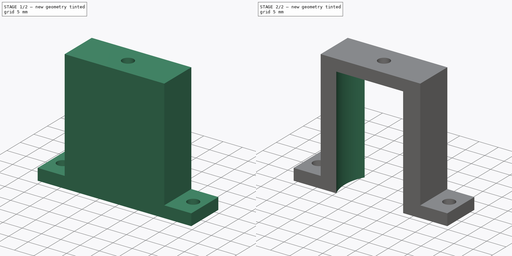
[diagram: build sequence overview — one tinted view per stage of 2, left to right]
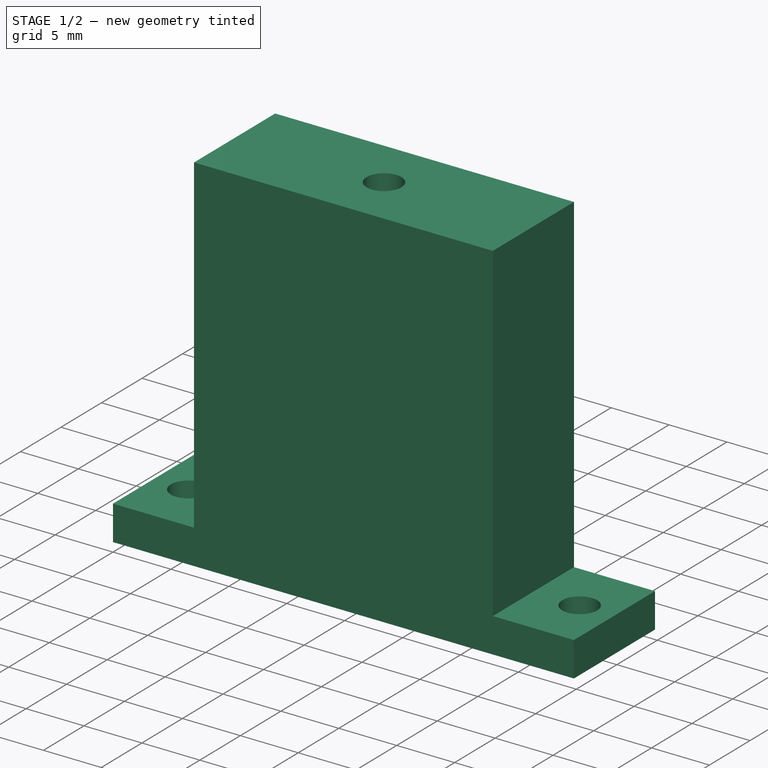
[diagram: stage 1 of 2 — iso view after this stage's code; geometry added in this stage tinted green]
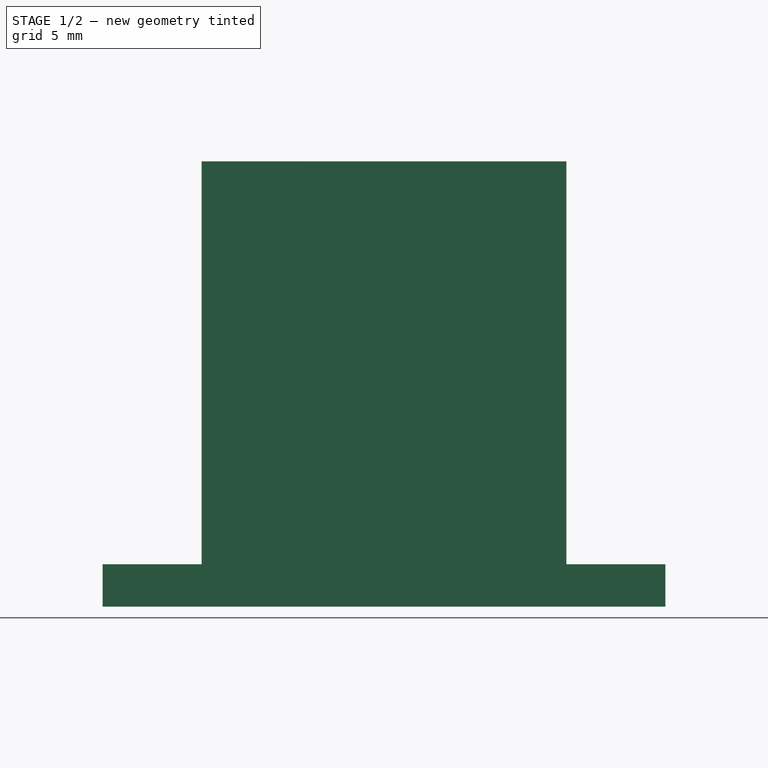
[diagram: stage 1 of 2 — front view after this stage's code; geometry added in this stage tinted green]
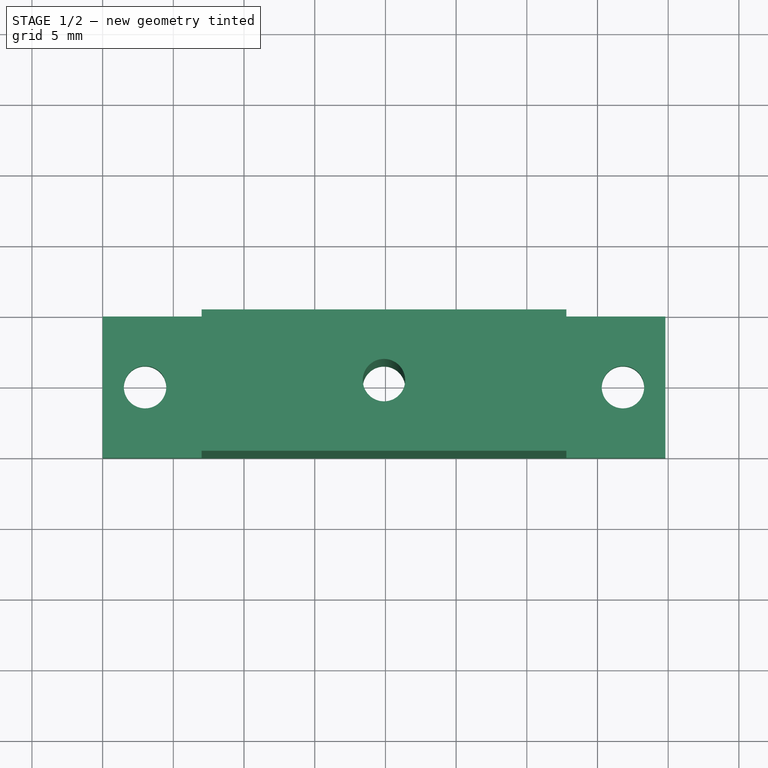
[diagram: stage 1 of 2 — top view after this stage's code; geometry added in this stage tinted green]
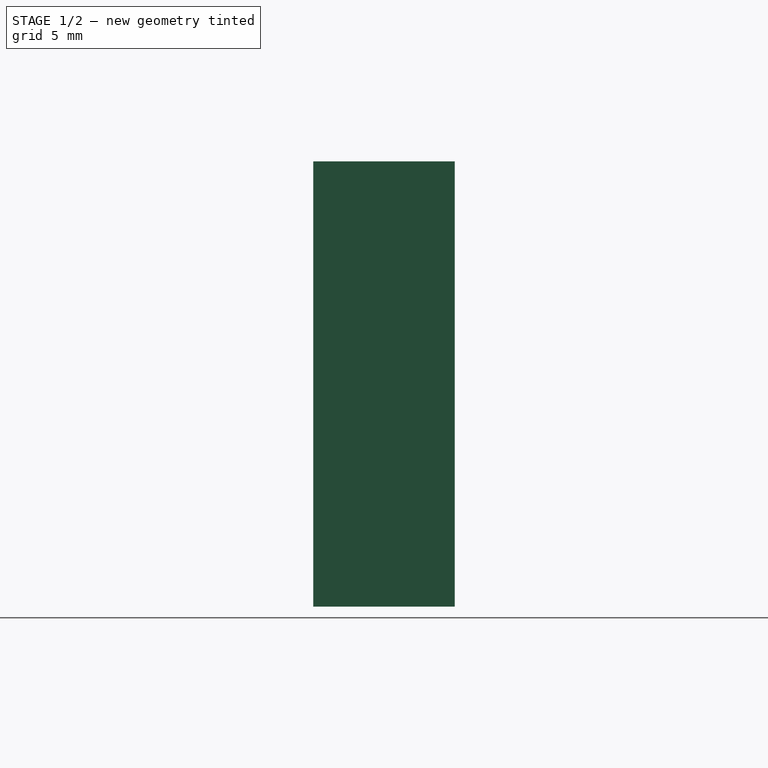
[diagram: stage 1 of 2 — right view after this stage's code; geometry added in this stage tinted green]
FCSTD DOCUMENT  (FreeCAD 0.16R6707 (Git))
Label: support moteur pince
License: All rights reserved
LicenseURL: http://en.wikipedia.org/wiki/All_rights_reserved
objects: Sketcher::SketchObject×3, PartDesign::Pocket×2, PartDesign::Pad×1
note: 9 computed .brp shape members not serialized (recipe doc carries the construction recipe); baked Part::Feature solids carry a one-line shape summary decoded from their .brp

FEATURE [Sketcher::SketchObject] Sketch
  Placement = pos=(22.5502,-21.4756,-0.423481) rot=(0,0,1;0rad)
  sketch-geometry (10):
    g0: LineSegment StartX=0 StartY=0 StartZ=0 EndX=39.8 EndY=0 EndZ=0
    g1: LineSegment StartX=39.8 StartY=0 StartZ=0 EndX=39.8 EndY=10 EndZ=0
    g2: LineSegment StartX=39.8 StartY=10 StartZ=0 EndX=0 EndY=10 EndZ=0
    g3: LineSegment StartX=0 StartY=10 StartZ=0 EndX=0 EndY=0 EndZ=0
    g4: GeomPoint [constr] X=3 Y=5 Z=0
    g5: GeomPoint [constr] X=36.8 Y=5 Z=0
    g6: Circle CenterX=3 CenterY=5 CenterZ=0 NormalX=0 NormalY=0 NormalZ=1 Radius=1.5
    g7: Circle CenterX=36.8 CenterY=5 CenterZ=0 NormalX=0 NormalY=0 NormalZ=1 Radius=1.5
    g8: GeomPoint [constr] X=19.9 Y=5 Z=0
    g9: Circle CenterX=19.9 CenterY=5 CenterZ=0 NormalX=0 NormalY=0 NormalZ=1 Radius=1.5
  constraints (23):
    c: Coincident(g0,g1)
    c: Coincident(g1,g2)
    c: Coincident(g2,g3)
    c: Coincident(g3,g0)
    c: Horizontal(g0)
    c: Horizontal(g2)
    c: Vertical(g1)
    c: Vertical(g3)
    c: Coincident(g0,g-1)
    c: Distance(g2) = 39.8
    c: Distance(g3) = 10
    c: DistanceY(g4) = 5
    c: DistanceX(g4) = 3
    c: DistanceX(g5) = 36.8
    c: DistanceY(g5) = 5
    c: Coincident(g6,g4)
    c: Coincident(g7,g5)
    c: Radius(g6) = 1.5
    c: Radius(g7) = 1.5
    c: DistanceY(g8) = 5
    c: DistanceX(g8) = 19.9
    c: Coincident(g9,g8)
    c: Radius(g9) = 1.5
FEATURE [PartDesign::Pad] Pad
  Length = 31.5
  Length2 = 100
  Sketch = -> Sketch
  Type = 0
FEATURE [Sketcher::SketchObject] Sketch001
  Placement = pos=(0,0,0) rot=(1,0,0;1.5708rad)
  Support = -> Pad [Face1]
  sketch-geometry (10):
    g0: GeomPoint [constr] X=7 Y=3 Z=0
    g1: GeomPoint [constr] X=32.8 Y=3 Z=0
    g2: LineSegment StartX=7 StartY=3 StartZ=0 EndX=0 EndY=3 EndZ=0
    g3: LineSegment StartX=0 StartY=3 StartZ=0 EndX=0 EndY=31.5 EndZ=0
    g4: LineSegment StartX=0 StartY=31.5 StartZ=0 EndX=7 EndY=31.5 EndZ=0
    g5: LineSegment StartX=7 StartY=31.5 StartZ=0 EndX=7 EndY=3 EndZ=0
    g6: LineSegment StartX=32.8 StartY=3 StartZ=0 EndX=39.8 EndY=3 EndZ=0
    g7: LineSegment StartX=39.8 StartY=3 StartZ=0 EndX=39.8 EndY=31.5 EndZ=0
    g8: LineSegment StartX=39.8 StartY=31.5 StartZ=0 EndX=32.8 EndY=31.5 EndZ=0
    g9: LineSegment StartX=32.8 StartY=31.5 StartZ=0 EndX=32.8 EndY=3 EndZ=0
  constraints (26):
    c: DistanceY(g0) = 3
    c: DistanceY(g0,g1) = 0
    c: DistanceX(g0) = 7
    c: DistanceX(g1) = 32.8
    c: Coincident(g2,g3)
    c: Coincident(g3,g4)
    c: Coincident(g4,g5)
    c: Coincident(g5,g2)
    c: Horizontal(g2)
    c: Horizontal(g4)
    c: Vertical(g3)
    c: Vertical(g5)
    c: Coincident(g2,g0)
    c: Coincident(g6,g7)
    c: Coincident(g7,g8)
    c: Coincident(g8,g9)
    c: Coincident(g9,g6)
    c: Horizontal(g6)
    c: Horizontal(g8)
    c: Vertical(g7)
    c: Vertical(g9)
    c: Coincident(g6,g1)
    c: Distance(g4) = 7
    c: Distance(g5) = 28.5
    c: Distance(g9) = 28.5
    c: Distance(g8) = 7
FEATURE [PartDesign::Pocket] Pocket
  Length = 10
  Sketch = -> Sketch001
  Type = 0
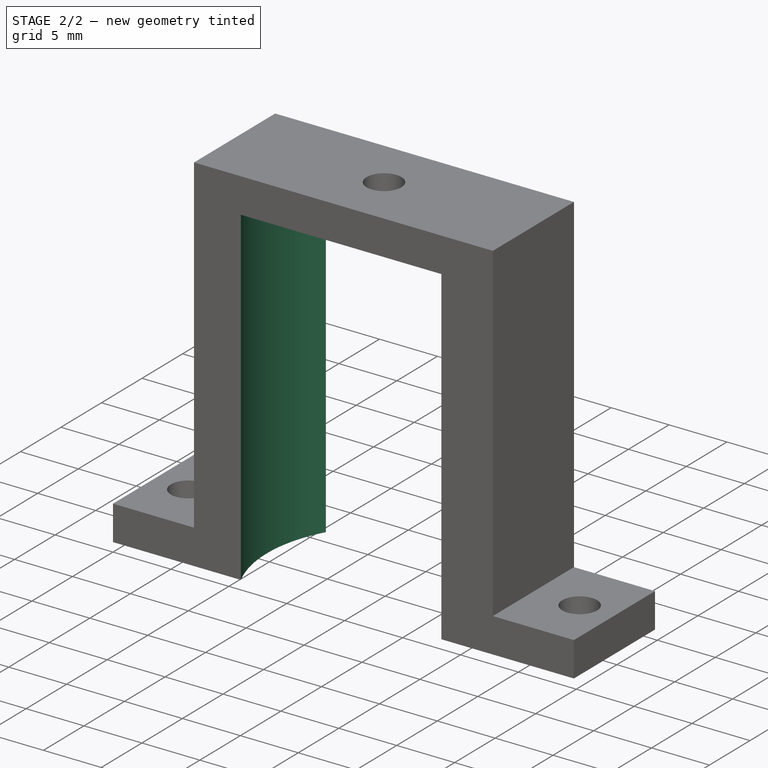
[diagram: stage 2 of 2 — iso view after this stage's code; geometry added in this stage tinted green]
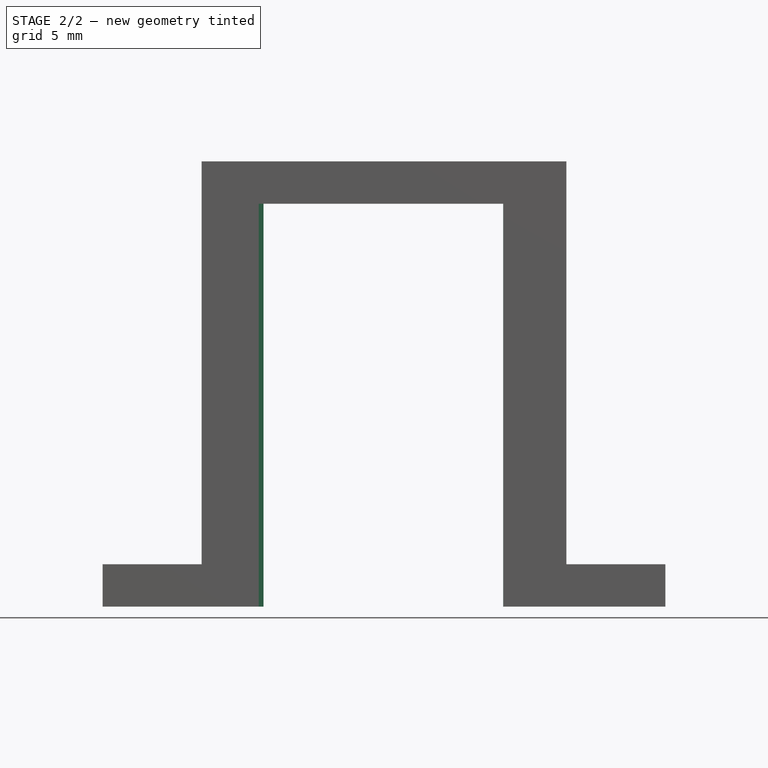
[diagram: stage 2 of 2 — front view after this stage's code; geometry added in this stage tinted green]
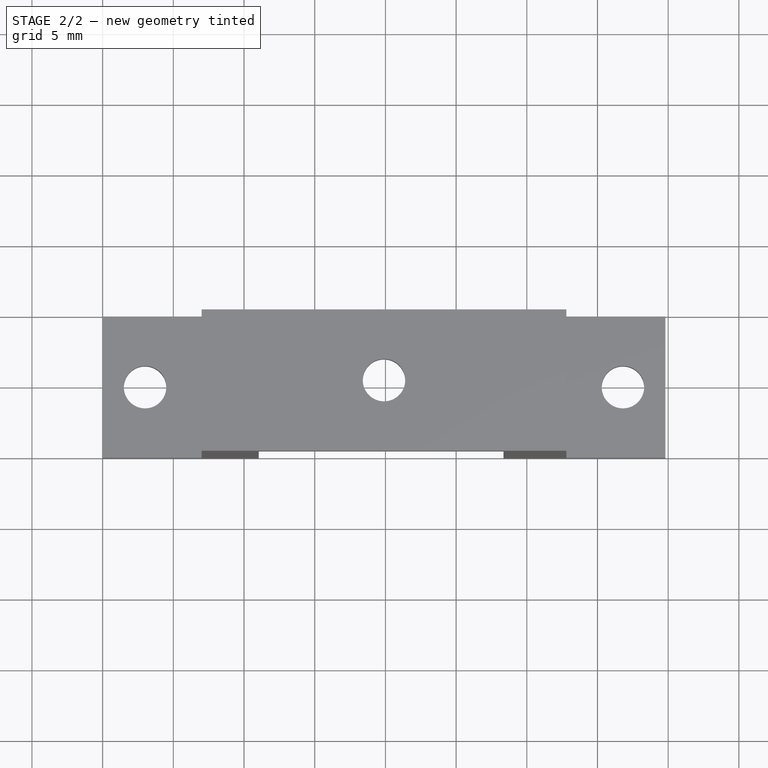
[diagram: stage 2 of 2 — top view after this stage's code; geometry added in this stage tinted green]
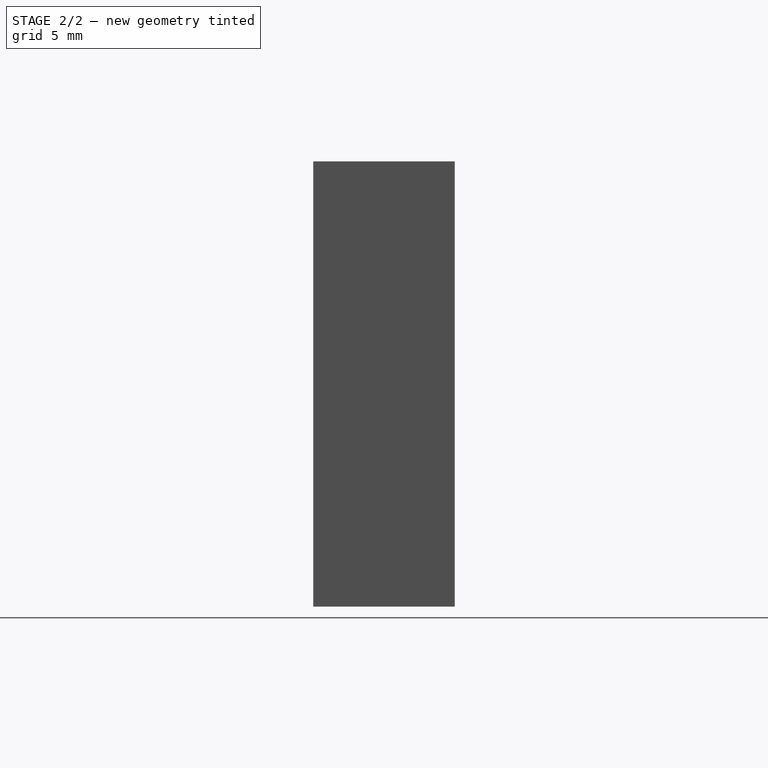
[diagram: stage 2 of 2 — right view after this stage's code; geometry added in this stage tinted green]
FEATURE [Sketcher::SketchObject] Sketch002
  Placement = pos=(0,0,0) rot=(1,0,0;3.14159rad)
  Support = -> Pocket [Face2]
  sketch-geometry (21):
    g0: GeomPoint [constr] X=19.9 Y=-5 Z=0
    g1: GeomPoint [constr] X=13.28 Y=2.5 Z=0
    g2: GeomPoint [constr] X=13.28 Y=-12.5 Z=0
    g3: GeomPoint [constr] X=26.52 Y=-12.5 Z=0
    g4: GeomPoint [constr] X=26.52 Y=2.5 Z=0
    g5: GeomPoint [constr] X=29.8 Y=-5 Z=0
    g6: GeomPoint [constr] X=10 Y=-5 Z=0
    g7: GeomPoint [constr] X=13.28 Y=0 Z=0
    g8: GeomPoint [constr] X=26.52 Y=0 Z=0
    g9: GeomPoint [constr] X=13.28 Y=-10 Z=0
    g10: GeomPoint [constr] X=26.52 Y=-10 Z=0
    g11: LineSegment StartX=13.28 StartY=0 StartZ=0 EndX=26.52 EndY=0 EndZ=0
    g12: LineSegment StartX=13.28 StartY=-10 StartZ=0 EndX=26.52 EndY=-10 EndZ=0
    g13: LineSegment StartX=13.28 StartY=-10 StartZ=0 EndX=11.3803 EndY=-10 EndZ=0
    g14: LineSegment StartX=26.52 StartY=-10 StartZ=0 EndX=28.3343 EndY=-10 EndZ=0
    g15: GeomPoint [constr] X=11.0444 Y=0 Z=0
    g16: GeomPoint [constr] X=28.351 Y=0 Z=0
    g17: LineSegment StartX=26.52 StartY=0 StartZ=0 EndX=28.351 EndY=0 EndZ=0
    g18: LineSegment StartX=13.28 StartY=0 StartZ=0 EndX=11.0444 EndY=0 EndZ=0
    g19: ArcOfCircle CenterX=20.9286 CenterY=-4.67365 CenterZ=0 NormalX=0 NormalY=0 NormalZ=1 Radius=10.9335 StartAngle=2.69991 EndAngle=3.65043
    g20: ArcOfCircle CenterX=20.4942 CenterY=-4.98689 CenterZ=0 NormalX=0 NormalY=0 NormalZ=1 Radius=9.30581 StartAngle=5.71428 EndAngle=6.84875
  constraints (42):
    c: DistanceY(g0) = -5
    c: DistanceX(g0) = 19.9
    c: DistanceY(g0,g1) = 7.5
    c: DistanceY(g0,g4) = 7.5
    c: DistanceY(g2,g0) = 7.5
    c: DistanceY(g3,g0) = 7.5
    c: DistanceX(g2,g0) = 6.62
    c: DistanceX(g2,g1) = 0
    c: DistanceX(g0,g4) = 6.62
    c: DistanceX(g4,g3) = 0
    c: DistanceX(g4,g5) = 3.28
    c: DistanceY(g5,g4) = 7.5
    c: DistanceY(g6,g1) = 7.5
    c: DistanceX(g6,g1) = 3.28
    c: DistanceY(g0,g7) = 5
    c: DistanceY(g9,g0) = 5
    c: DistanceY(g10,g0) = 5
    c: DistanceY(g0,g8) = 5
    c: DistanceX(g2,g9) = 0
    c: DistanceX(g10,g3) = 0
    c: DistanceX(g1,g7) = 0
    c: DistanceX(g8,g4) = 0
    c: Coincident(g11,g7)
    c: Coincident(g11,g8)
    c: Coincident(g12,g9)
    c: Coincident(g12,g10)
    c: Coincident(g13,g9)
    c: Horizontal(g13)
    c: Coincident(g14,g10)
    c: Horizontal(g14)
    c: DistanceY(g15) = 0
    c: DistanceY(g16) = 0
    c: Coincident(g17,g8)
    c: Coincident(g17,g16)
    c: Coincident(g18,g7)
    c: Coincident(g18,g15)
    c: Coincident(g19,g15)
    c: Coincident(g19,g13)
    c: PointOnObject(g6,g19)
    c: Coincident(g20,g16)
    c: Coincident(g20,g14)
    c: PointOnObject(g5,g20)
FEATURE [PartDesign::Pocket] Pocket001
  Length = 28.5
  Sketch = -> Sketch002
  Type = 0
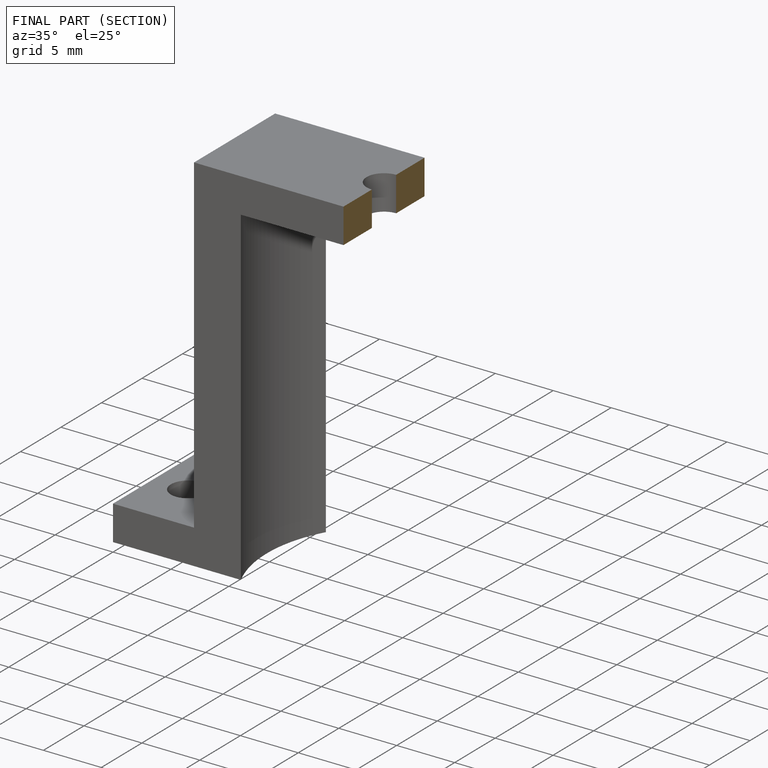
[diagram: finished part — half-section view (interior)]
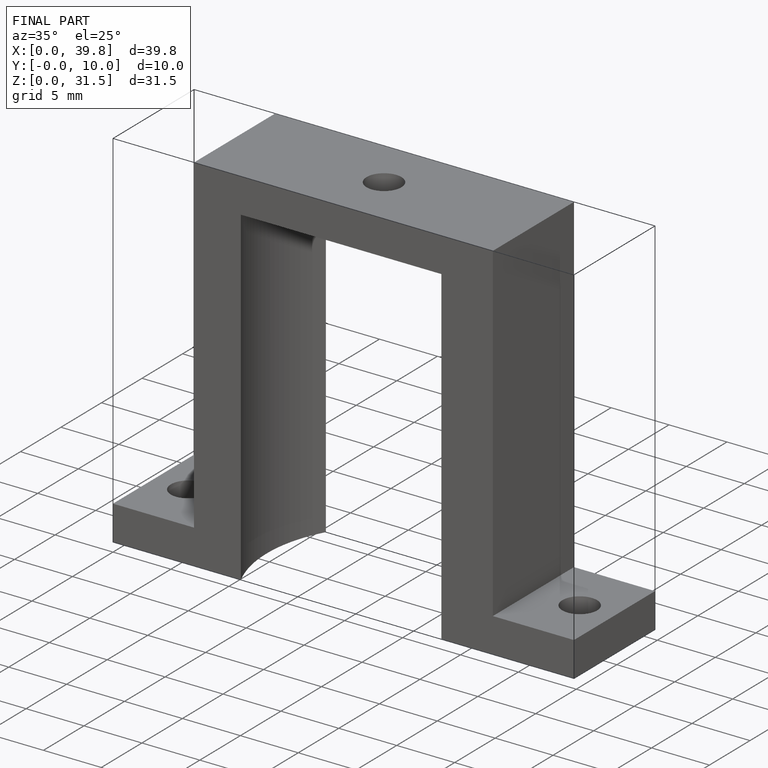
[diagram: finished part — iso view with bounding-box wireframe]
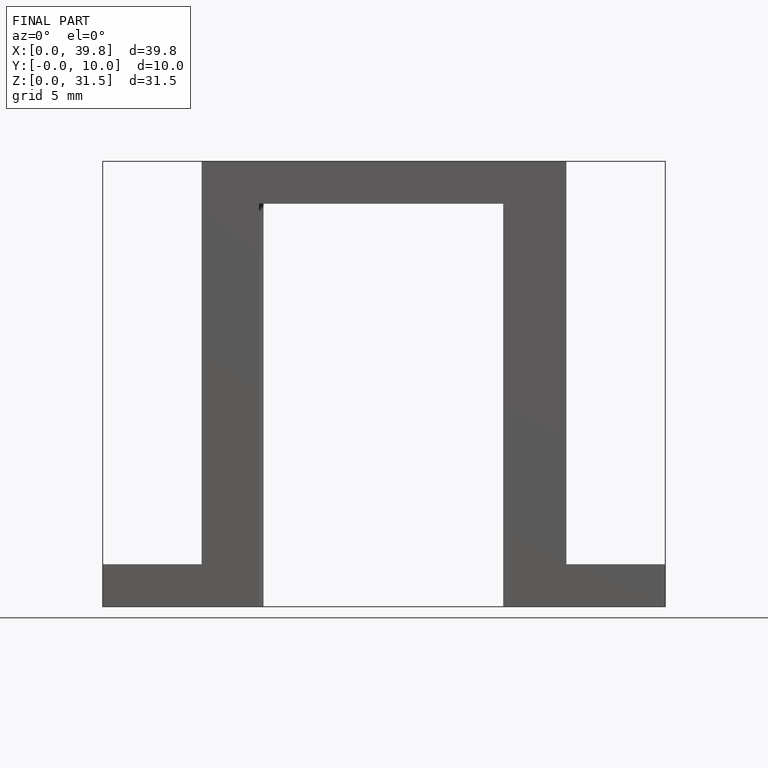
[diagram: finished part — front view with bounding-box wireframe]
